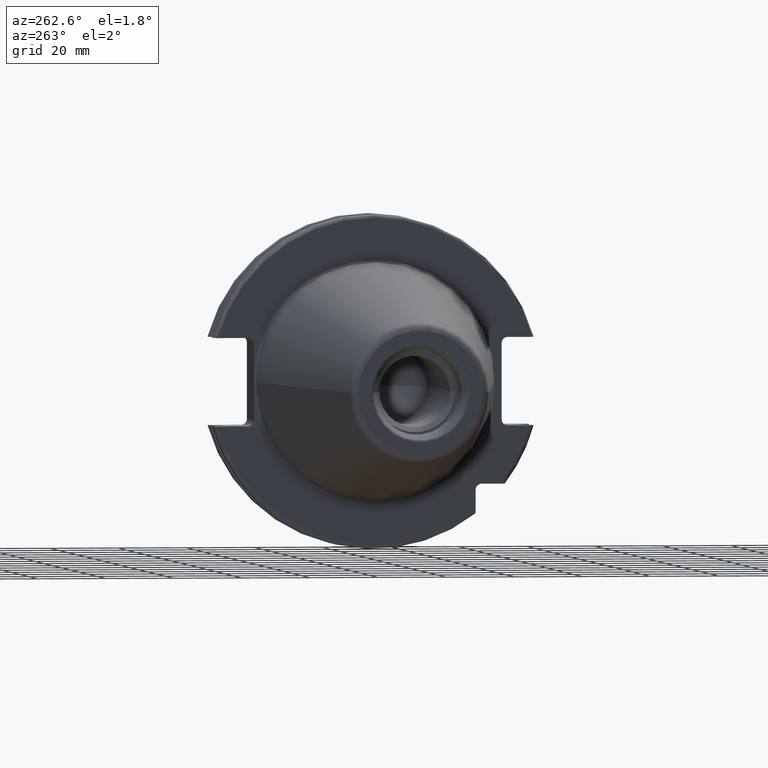
[diagram: clean part render]
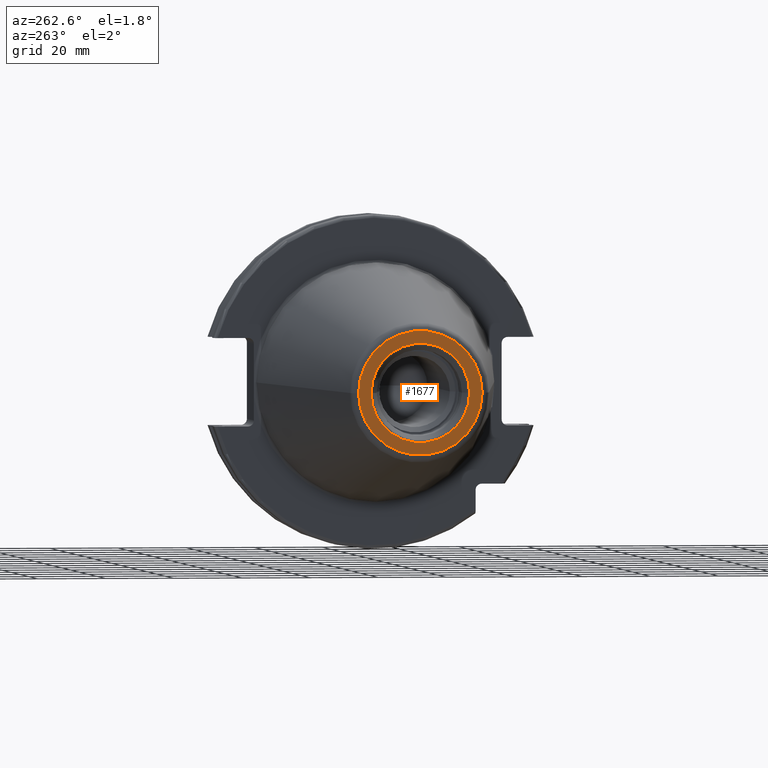
[diagram: same view with one face highlighted and labeled with its STEP entity id]
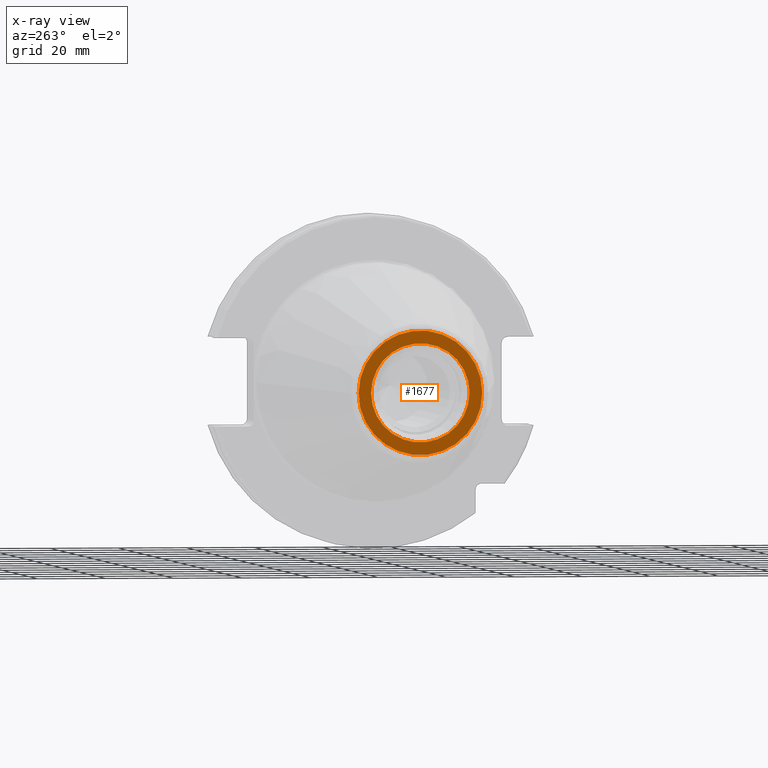
[diagram: x-ray of the same camera — body ghosted, the highlighted face saturated]
A machine part, auxiliary view. The second image highlights one B-rep face of the part: STEP entity #1677.
The next image is the same camera in x-ray: the body ghosted, the highlighted face saturated — about 0% of this face is hidden behind the body in this view.
In plain terms, the highlighted planar face has unit normal (1, 0, 0).
Its self-contained STEP definition (entity closure, byte-faithful):
#2=CARTESIAN_POINT('',(-1.016E2,0.E0,0.E0));
#3=DIRECTION('',(-1.E0,0.E0,0.E0));
#4=DIRECTION('',(0.E0,1.E0,0.E0));
#5=AXIS2_PLACEMENT_3D('',#2,#3,#4);
#7=CARTESIAN_POINT('',(-1.016E2,0.E0,0.E0));
#8=DIRECTION('',(1.E0,0.E0,0.E0));
#9=DIRECTION('',(0.E0,1.E0,0.E0));
#10=AXIS2_PLACEMENT_3D('',#7,#8,#9);
#12=CARTESIAN_POINT('',(-1.016E2,0.E0,0.E0));
#13=DIRECTION('',(1.E0,0.E0,0.E0));
#14=DIRECTION('',(0.E0,1.E0,0.E0));
#15=AXIS2_PLACEMENT_3D('',#12,#13,#14);
#17=CARTESIAN_POINT('',(-1.016E2,0.E0,0.E0));
#18=DIRECTION('',(1.E0,0.E0,0.E0));
#19=DIRECTION('',(0.E0,-1.E0,0.E0));
#20=AXIS2_PLACEMENT_3D('',#17,#18,#19);
#1389=CARTESIAN_POINT('',(-1.016E2,1.816144700117E1,0.E0));
#1391=VERTEX_POINT('',#1389);
#1393=CARTESIAN_POINT('',(-1.016E2,-1.816144700117E1,0.E0));
#1395=VERTEX_POINT('',#1393);
#1452=CARTESIAN_POINT('',(-1.016E2,1.446188021535E1,0.E0));
#1453=CARTESIAN_POINT('',(-1.016E2,-1.446188021535E1,0.E0));
#1454=VERTEX_POINT('',#1452);
#1455=VERTEX_POINT('',#1453);
#1660=CARTESIAN_POINT('',(-1.016E2,0.E0,0.E0));
#1661=DIRECTION('',(1.E0,0.E0,0.E0));
#1662=DIRECTION('',(0.E0,-1.E0,0.E0));
#1663=AXIS2_PLACEMENT_3D('',#1660,#1661,#1662);
#1664=PLANE('',#1663);
#1666=ORIENTED_EDGE('',*,*,#1665,.F.);
#1668=ORIENTED_EDGE('',*,*,#1667,.T.);
#1669=EDGE_LOOP('',(#1666,#1668));
#1670=FACE_OUTER_BOUND('',#1669,.F.);
#1672=ORIENTED_EDGE('',*,*,#1671,.F.);
#1674=ORIENTED_EDGE('',*,*,#1673,.F.);
#1675=EDGE_LOOP('',(#1672,#1674));
#1676=FACE_BOUND('',#1675,.F.);
#1677=ADVANCED_FACE('',(#1670,#1676),#1664,.F.);
#6=CIRCLE('',#5,1.816144700117E1);
#11=CIRCLE('',#10,1.816144700117E1);
#16=CIRCLE('',#15,1.446188021535E1);
#21=CIRCLE('',#20,1.446188021535E1);
#1665=EDGE_CURVE('',#1391,#1395,#6,.T.);
#1667=EDGE_CURVE('',#1391,#1395,#11,.T.);
#1671=EDGE_CURVE('',#1454,#1455,#16,.T.);
#1673=EDGE_CURVE('',#1455,#1454,#21,.T.);